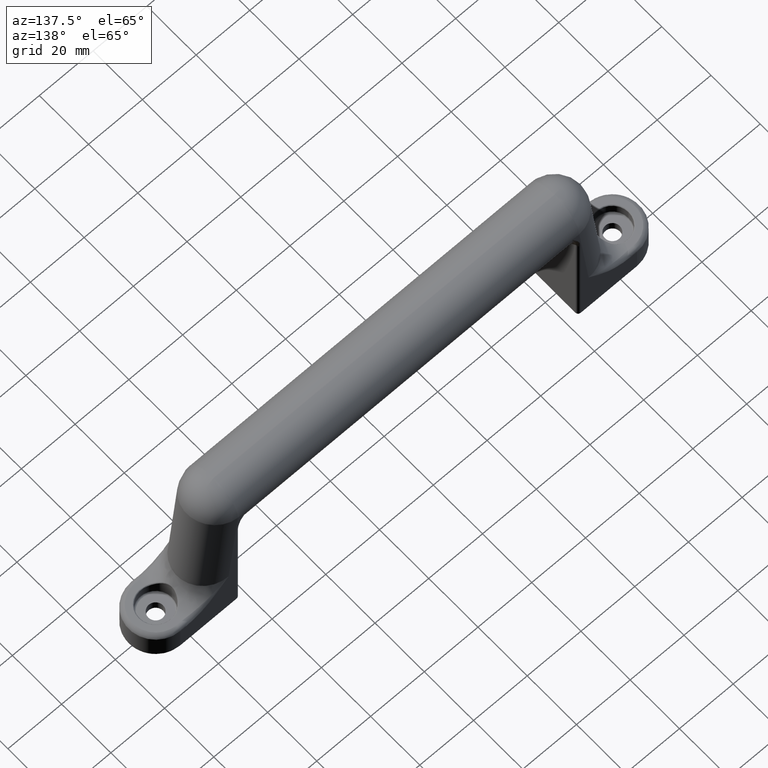
[diagram: clean part render]
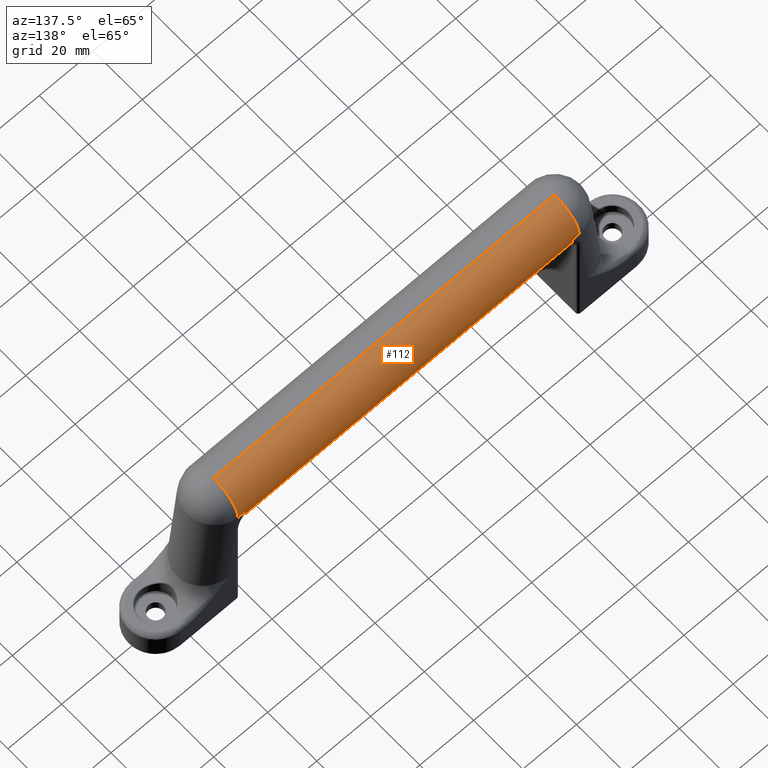
[diagram: same view with one face highlighted and labeled with its STEP entity id]
A machine part, auxiliary view. The second image highlights one B-rep face of the part: STEP entity #112.
In plain terms, the highlighted cylindrical surface (edge-blend (fillet) strip) has radius 10 mm, axis along (-1, -0, -0).
Its self-contained STEP definition (entity closure, byte-faithful):
#112=ADVANCED_FACE('',(#847),#846,.T.);
#846=CYLINDRICAL_SURFACE('',#2587,1.00000000000E+01);
#847=FACE_OUTER_BOUND('',#2588,.T.);
#2584=CARTESIAN_POINT('',(0.00000000000E+00,6.93889390391E-15,1.99493199737E-13));
#2585=DIRECTION('',(-1.00000000000E+00,-0.00000000000E+00,-0.00000000000E+00));
#2586=DIRECTION('',(0.00000000000E+00,0.00000000000E+00,1.00000000000E+00));
#2587=AXIS2_PLACEMENT_3D('',#2584,#2585,#2586);
#2588=EDGE_LOOP('',(#2942,#2943,#2944,#2945,#2946,#2947,#2948,#2949));
#2942=ORIENTED_EDGE('',*,*,#3085,.T.);
#2943=ORIENTED_EDGE('',*,*,#3092,.F.);
#2944=ORIENTED_EDGE('',*,*,#3089,.T.);
#2945=ORIENTED_EDGE('',*,*,#3156,.F.);
#2946=ORIENTED_EDGE('',*,*,#3126,.F.);
#2947=ORIENTED_EDGE('',*,*,#3132,.T.);
#2948=ORIENTED_EDGE('',*,*,#3124,.F.);
#2949=ORIENTED_EDGE('',*,*,#3157,.T.);
#3085=EDGE_CURVE('',#3839,#3489,#3840,.T.);
#3089=EDGE_CURVE('',#3852,#3859,#3866,.T.);
#3092=EDGE_CURVE('',#3852,#3489,#3884,.T.);
#3124=EDGE_CURVE('',#4090,#3164,#4097,.T.);
#3126=EDGE_CURVE('',#4103,#4111,#4112,.T.);
#3132=EDGE_CURVE('',#4103,#3164,#4148,.T.);
#3156=EDGE_CURVE('',#4111,#3859,#4300,.T.);
#3157=EDGE_CURVE('',#4090,#3839,#4306,.T.);
#3164=VERTEX_POINT('',#4348);
#3489=VERTEX_POINT('',#4752);
#3839=VERTEX_POINT('',#5031);
#3840=CIRCLE('',#5035,1.00000000000E+01);
#3852=VERTEX_POINT('',#5040);
#3859=VERTEX_POINT('',#5045);
#3866=CIRCLE('',#5053,1.00000000000E+01);
#3884=LINE('',#5060,#5061);
#4090=VERTEX_POINT('',#5236);
#4097=CIRCLE('',#5244,1.00000000000E+01);
#4103=VERTEX_POINT('',#5245);
#4111=VERTEX_POINT('',#5251);
#4112=CIRCLE('',#5255,1.00000000000E+01);
#4148=LINE('',#5272,#5273);
#4300=(BOUNDED_CURVE() B_SPLINE_CURVE(1,(#5358,#5359),.UNSPECIFIED.,.F.,.F.) B_SPLINE_CURVE_WITH_KNOTS((2,2),(6.80317943912E-02,9.31968205644E-01),.UNSPECIFIED.) CURVE() GEOMETRIC_REPRESENTATION_ITEM() RATIONAL_B_SPLINE_CURVE((1.00000000000E+00,1.00000000000E+00)) REPRESENTATION_ITEM('') );
#4306=(BOUNDED_CURVE() B_SPLINE_CURVE(1,(#5360,#5361),.UNSPECIFIED.,.F.,.F.) B_SPLINE_CURVE_WITH_KNOTS((2,2),(8.50060547460E-02,9.14993945254E-01),.UNSPECIFIED.) CURVE() GEOMETRIC_REPRESENTATION_ITEM() RATIONAL_B_SPLINE_CURVE((7.50000000000E-01,7.50000000000E-01)) REPRESENTATION_ITEM('') );
#4348=CARTESIAN_POINT('',(6.10000000008E+01,1.00000000000E+01,1.99493199737E-13));
#4752=CARTESIAN_POINT('',(-6.10000000008E+01,1.00000000000E+01,1.99493199737E-13));
#5031=CARTESIAN_POINT('',(-6.10000000008E+01,-7.15545080454E-07,-1.00000000000E+01));
#5032=CARTESIAN_POINT('',(-6.10000000008E+01,6.93889390391E-15,1.99493199737E-13));
#5033=DIRECTION('',(1.00000000000E+00,0.00000000000E+00,0.00000000000E+00));
#5034=DIRECTION('',(-0.00000000000E+00,-0.00000000000E+00,1.00000000000E+00));
#5035=AXIS2_PLACEMENT_3D('',#5032,#5033,#5034);
#5040=CARTESIAN_POINT('',(-6.34950481789E+01,1.00000000000E+01,1.99493199737E-13));
#5045=CARTESIAN_POINT('',(-6.34950481789E+01,6.93889390391E-15,1.00000000000E+01));
#5050=CARTESIAN_POINT('',(-6.34950481789E+01,6.93889390391E-15,1.99493199737E-13));
#5051=DIRECTION('',(1.00000000000E+00,0.00000000000E+00,-0.00000000000E+00));
#5052=DIRECTION('',(-0.00000000000E+00,-0.00000000000E+00,-1.00000000000E+00));
#5053=AXIS2_PLACEMENT_3D('',#5050,#5051,#5052);
#5060=CARTESIAN_POINT('',(-6.34950481789E+01,1.00000000000E+01,1.99493199737E-13));
#5061=VECTOR('',#5062,2.49504817813E+00);
#5062=DIRECTION('',(1.00000000000E+00,0.00000000000E+00,0.00000000000E+00));
#5236=CARTESIAN_POINT('',(6.10000000008E+01,5.71428755008E-15,-1.00000000000E+01));
#5241=CARTESIAN_POINT('',(6.10000000008E+01,6.93889390391E-15,1.99493199737E-13));
#5242=DIRECTION('',(1.00000000000E+00,0.00000000000E+00,0.00000000000E+00));
#5243=DIRECTION('',(-0.00000000000E+00,-0.00000000000E+00,1.00000000000E+00));
#5244=AXIS2_PLACEMENT_3D('',#5241,#5242,#5243);
#5245=CARTESIAN_POINT('',(6.34950481789E+01,1.00000000000E+01,1.99493199737E-13));
#5251=CARTESIAN_POINT('',(6.34950481789E+01,6.93889390391E-15,1.00000000000E+01));
#5252=CARTESIAN_POINT('',(6.34950481789E+01,6.93889390391E-15,1.99493199737E-13));
#5253=DIRECTION('',(1.00000000000E+00,0.00000000000E+00,-0.00000000000E+00));
#5254=DIRECTION('',(-0.00000000000E+00,-0.00000000000E+00,-1.00000000000E+00));
#5255=AXIS2_PLACEMENT_3D('',#5252,#5253,#5254);
#5272=CARTESIAN_POINT('',(6.34950481789E+01,1.00000000000E+01,1.99493199737E-13));
#5273=VECTOR('',#5274,2.49504817813E+00);
#5274=DIRECTION('',(-1.00000000000E+00,0.00000000000E+00,0.00000000000E+00));
#5358=CARTESIAN_POINT('',(6.34950481660E+01,6.93889390391E-15,1.00000000000E+01));
#5359=CARTESIAN_POINT('',(-6.34950481712E+01,6.93889390391E-15,1.00000000000E+01));
#5360=CARTESIAN_POINT('',(6.10000000008E+01,6.51330841113E-15,-1.00000000000E+01));
#5361=CARTESIAN_POINT('',(-6.10000000008E+01,6.51330841113E-15,-1.00000000000E+01));